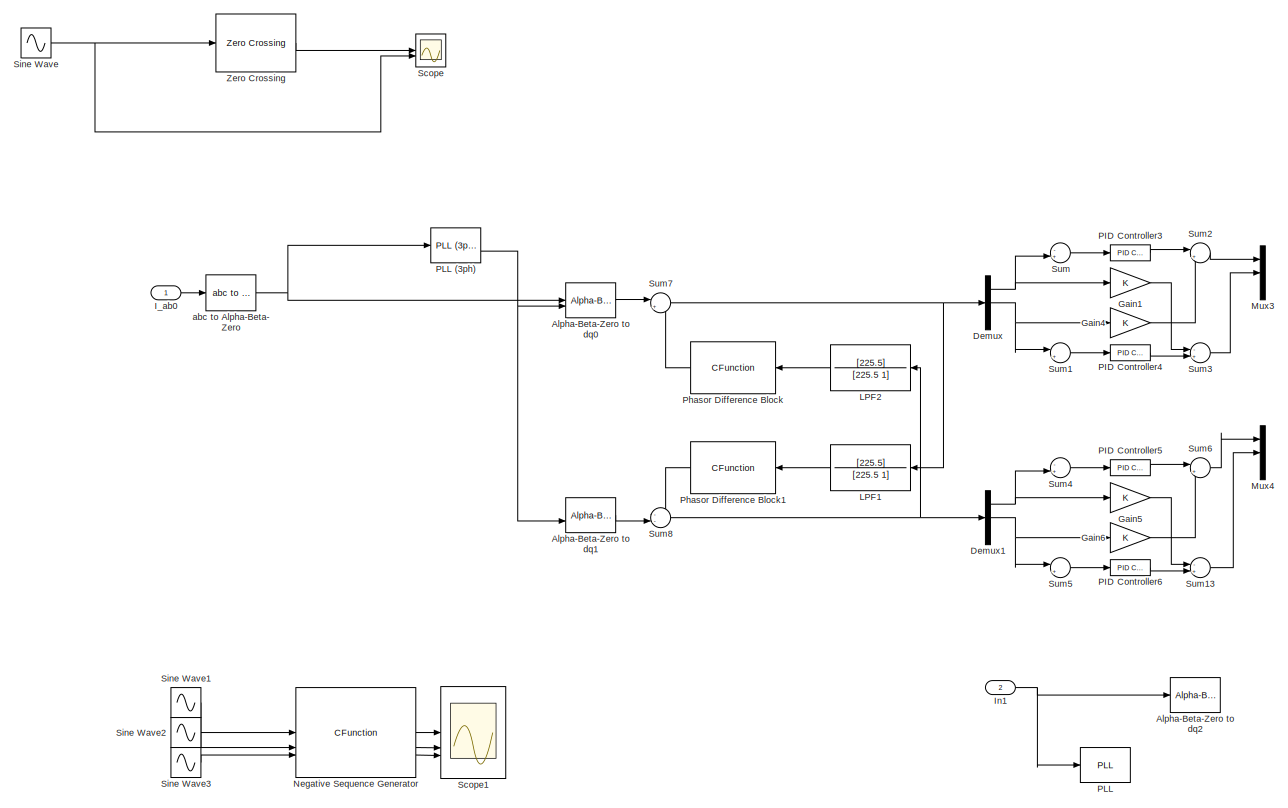
[diagram: root canvas - part 1/2, right side, full height]
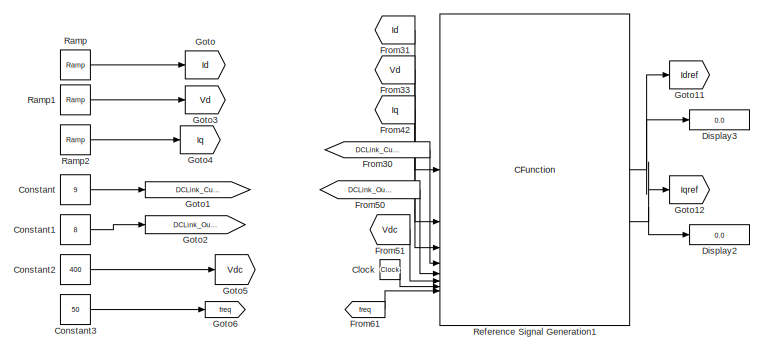
[diagram: root canvas - part 2/2, top left region]
MODEL slx_b0a8a4582526
KIND model
CONFIG AbsTol = auto
CONFIG EnableMultiTasking = off
CONFIG FixedStep = auto
CONFIG MaxStep = auto
CONFIG MinStep = auto
CONFIG RelTol = 1e-3
CONFIG SampleTimeConstraint = Unconstrained
CONFIG SolverName = VariableStepAuto
CONFIG StartTime = 0.0
CONFIG StopTime = 1
BLOCK [Reference] Alpha-Beta-Zero to dq0  REF=spsAlphaBetaZerotodq0Lib/Alpha-Beta-Zero
to dq0
  Commented = on
  LibrarySourceBlock = sps_lib/Control/Alpha-Beta-Zero\nto dq0
  SourceBlock = spsAlphaBetaZerotodq0Lib/Alpha-Beta-Zero\nto dq0
  SourceType = Alpha-Beta-Zero to dq0 Transformation
BLOCK [Reference] Alpha-Beta-Zero to dq1  REF=spsAlphaBetaZerotodq0Lib/Alpha-Beta-Zero
to dq0
  Commented = on
  LibrarySourceBlock = sps_lib/Control/Alpha-Beta-Zero\nto dq0
  SourceBlock = spsAlphaBetaZerotodq0Lib/Alpha-Beta-Zero\nto dq0
  SourceType = Alpha-Beta-Zero to dq0 Transformation
BLOCK [Reference] Alpha-Beta-Zero to dq2  REF=spsAlphaBetaZerotodq0Lib/Alpha-Beta-Zero
to dq0
  LibrarySourceBlock = sps_lib/Control/Alpha-Beta-Zero\nto dq0
  SourceBlock = spsAlphaBetaZerotodq0Lib/Alpha-Beta-Zero\nto dq0
  SourceType = Alpha-Beta-Zero to dq0 Transformation
BLOCK [Clock] Clock
  Commented = on
BLOCK [Constant] Constant
  Commented = on
  SampleTime = 1/10000
  Value = 9
BLOCK [Constant] Constant1
  Commented = on
  SampleTime = 1/10000
  Value = 8
BLOCK [Constant] Constant2
  Commented = on
  SampleTime = 1/10000
  Value = 400
BLOCK [Constant] Constant3
  Commented = on
  SampleTime = 1/10000
  Value = 50
BLOCK [Demux] Demux
  Commented = on
  Outputs = 3
BLOCK [Demux] Demux1
  Commented = on
  Outputs = 3
BLOCK [Display] Display2
  Commented = on
  Decimation = 1
BLOCK [Display] Display3
  Commented = on
  Decimation = 1
BLOCK [From] From30
  Commented = on
  GotoTag = DCLink_Current
  NameLocation = top
BLOCK [From] From31
  Commented = on
  GotoTag = Id
BLOCK [From] From33
  Commented = on
  GotoTag = Vd
BLOCK [From] From42
  Commented = on
  GotoTag = Iq
BLOCK [From] From50
  Commented = on
  GotoTag = DCLink_OutCurrent
  NameLocation = top
BLOCK [From] From51
  Commented = on
  GotoTag = Vdc
BLOCK [From] From61
  Commented = on
  GotoTag = freq
BLOCK [Gain] Gain1
  Commented = on
BLOCK [Gain] Gain4
  Commented = on
BLOCK [Gain] Gain5
  Commented = on
BLOCK [Gain] Gain6
  Commented = on
BLOCK [Goto] Goto
  Commented = on
  GotoTag = Id
BLOCK [Goto] Goto1
  Commented = on
  GotoTag = DCLink_Current
BLOCK [Goto] Goto11
  Commented = on
  GotoTag = Idref
BLOCK [Goto] Goto12
  Commented = on
  GotoTag = Iqref
BLOCK [Goto] Goto2
  Commented = on
  GotoTag = DCLink_OutCurrent
BLOCK [Goto] Goto3
  Commented = on
  GotoTag = Vd
BLOCK [Goto] Goto4
  Commented = on
  GotoTag = Iq
BLOCK [Goto] Goto5
  Commented = on
  GotoTag = Vdc
BLOCK [Goto] Goto6
  Commented = on
  GotoTag = freq
BLOCK [Inport] I_ab0
BLOCK [Inport] In1
  Port = 2
BLOCK [TransferFcn] LPF1
  Commented = on
  Denominator = [225.5 1]
  NameLocation = top
  Numerator = [225.5]
BLOCK [TransferFcn] LPF2
  Commented = on
  Denominator = [225.5 1]
  NameLocation = top
  Numerator = [225.5]
BLOCK [Mux] Mux3
  Commented = on
  DisplayOption = bar
  Inputs = 3
BLOCK [Mux] Mux4
  Commented = on
  DisplayOption = bar
  Inputs = 3
BLOCK [CFunction] Negative Sequence Generator
  OutputCode = VaNeg=*magnitude = cabs(NegativeSequenceVa(Va,Vb,Vc));
BLOCK [Reference] PID Controller3  REF=slpidlib/PID Controller
  Commented = on
  LibrarySourceBlock = simulink/Continuous/PID Controller
  SourceBlock = slpidlib/PID Controller
  SourceType = PID 1dof
BLOCK [Reference] PID Controller4  REF=slpidlib/PID Controller
  Commented = on
  LibrarySourceBlock = simulink/Continuous/PID Controller
  SourceBlock = slpidlib/PID Controller
  SourceType = PID 1dof
BLOCK [Reference] PID Controller5  REF=slpidlib/PID Controller
  Commented = on
  LibrarySourceBlock = simulink/Continuous/PID Controller
  SourceBlock = slpidlib/PID Controller
  SourceType = PID 1dof
BLOCK [Reference] PID Controller6  REF=slpidlib/PID Controller
  Commented = on
  LibrarySourceBlock = simulink/Continuous/PID Controller
  SourceBlock = slpidlib/PID Controller
  SourceType = PID 1dof
BLOCK [Reference] PLL  REF=spsPLLLib/PLL
  LibrarySourceBlock = sps_lib/Control/PLL
  SourceBlock = spsPLLLib/PLL
  SourceType = PLL
BLOCK [Reference] PLL (3ph)  REF=spsPLL3phLib/PLL
(3ph)
  Commented = on
  LibrarySourceBlock = sps_lib/Control/PLL\n(3ph)
  SourceBlock = spsPLL3phLib/PLL\n(3ph)
  SourceType = PLL (3ph)
BLOCK [CFunction] Phasor Difference Block
  Commented = on
  NameLocation = top
BLOCK [CFunction] Phasor Difference Block1
  Commented = on
  NameLocation = top
BLOCK [Reference] Ramp  REF=simulink/Sources/Ramp
  Commented = on
  SourceBlock = simulink/Sources/Ramp
  SourceType = Ramp
BLOCK [Reference] Ramp1  REF=simulink/Sources/Ramp
  Commented = on
  SourceBlock = simulink/Sources/Ramp
  SourceType = Ramp
BLOCK [Reference] Ramp2  REF=simulink/Sources/Ramp
  Commented = on
  SourceBlock = simulink/Sources/Ramp
  SourceType = Ramp
BLOCK [CFunction] Reference Signal Generation1
  Commented = on
  OutputCode = if(Id!=PreviousId || Iq!=PreviousIq){\n    if(ReferenceGenTrigger(Freq_PLL)){\n        Idref=IdrefCalc(CLK,Vd,Iin,Iout, Vdc, Vdc);\n  //Idref =1;\n   Iqref=0;\n   PreviousId=Id;\n   PreviousIq=Iq;\n   }\n  \n} else { Idref = 0; Iqref = 0;}
  SampleTime = 1/10000
  StartCode = PreviousIq =0;\nPreviousId =0;
BLOCK [Scope] Scope
  Commented = on
  Floating = off
  NumInputPorts = 2
  ScopeSpecificationString = Simulink.scopes.TimeScopeBlockCfg('CurrentConfiguration', extmgr.ConfigurationSet(extmgr.Configuration('Core','General UI',true),extmgr.Configuration('Core','Source UI',true),extmgr.Configuration('Sources','WiredSimulink',true),extmgr.Configuration('Visuals','Time Domain',true,'SerializedDisplays',{struct('MinYLimReal','-0.25947','MaxYLimReal','2.17359','YLabelReal','','MinYLimMag','0.00000','MaxY...<+1392ch>
BLOCK [Scope] Scope1
  Floating = off
  NumInputPorts = 3
  ScopeSpecificationString = Simulink.scopes.TimeScopeBlockCfg('CurrentConfiguration', extmgr.ConfigurationSet(extmgr.Configuration('Core','General UI',true),extmgr.Configuration('Core','Source UI',true),extmgr.Configuration('Sources','WiredSimulink',true,'DataLoggingVariableName','ScopeData1'),extmgr.Configuration('Visuals','Time Domain',true,'SerializedDisplays',{struct('MinYLimReal','-10','MaxYLimReal','10','YLabelReal',''...<+1317ch>
BLOCK [Sin] Sine Wave
  Amplitude = 10
  Commented = on
  Frequency = 2*pi*50
  SampleTime = 0
BLOCK [Sin] Sine Wave1
  Amplitude = 340
  Frequency = 2*pi*50
  SampleTime = 0
BLOCK [Sin] Sine Wave2
  Amplitude = 340
  Frequency = 2*pi*50
  Phase = 0.333*(2*pi)
  SampleTime = 0
BLOCK [Sin] Sine Wave3
  Amplitude = 340
  Frequency = 2*pi*50
  Phase = -0.333*(2*pi)
  SampleTime = 0
BLOCK [Sum] Sum
  Commented = on
  Inputs = -+|
BLOCK [Sum] Sum1
  Commented = on
  Inputs = |+-
BLOCK [Sum] Sum13
  Commented = on
  Inputs = -+|
BLOCK [Sum] Sum2
  Commented = on
  Inputs = |++
BLOCK [Sum] Sum3
  Commented = on
  Inputs = -+|
BLOCK [Sum] Sum4
  Commented = on
  Inputs = -+|
BLOCK [Sum] Sum5
  Commented = on
  Inputs = |+-
BLOCK [Sum] Sum6
  Commented = on
  Inputs = |++
BLOCK [Sum] Sum7
  Commented = on
  Inputs = |++
BLOCK [Sum] Sum8
  Commented = on
  Inputs = --|
BLOCK [Reference] Zero Crossing  REF=dspsigops/Zero Crossing
  Commented = on
  SourceBlock = dspsigops/Zero Crossing
  SourceType = Zero Crossing
  UserDataPersistent = on
BLOCK [Reference] abc to Alpha-Beta-Zero  REF=spsabctoAlphaBetaZeroLib/abc to
Alpha-Beta-Zero
  Commented = on
  LibrarySourceBlock = sps_lib/Control/abc to\nAlpha-Beta-Zero
  SourceBlock = spsabctoAlphaBetaZeroLib/abc to\nAlpha-Beta-Zero
  SourceType = abc to Alpha-Beta-Zero Transformation
LINE Alpha-Beta-Zero to dq0:1 -> Sum7:1
LINE Alpha-Beta-Zero to dq1:1 -> Sum8:2
LINE Clock:1 -> Reference Signal Generation1:7
LINE Constant1:1 -> Goto2:1
LINE Constant2:1 -> Goto5:1
LINE Constant3:1 -> Goto6:1
LINE Constant:1 -> Goto1:1
NET Demux1:1 -> Gain5:1, Sum4:2
NET Demux1:2 -> Gain6:1, Sum5:1
NET Demux:1 -> Gain1:1, Sum:2
NET Demux:2 -> Gain4:1, Sum1:1
LINE From30:1 -> Reference Signal Generation1:4
LINE From31:1 -> Reference Signal Generation1:1
LINE From33:1 -> Reference Signal Generation1:2
LINE From42:1 -> Reference Signal Generation1:3
LINE From50:1 -> Reference Signal Generation1:5
LINE From51:1 -> Reference Signal Generation1:6
LINE From61:1 -> Reference Signal Generation1:8
LINE Gain1:1 -> Sum3:1
LINE Gain4:1 -> Sum2:2
LINE Gain5:1 -> Sum13:1
LINE Gain6:1 -> Sum6:2
LINE I_ab0:1 -> abc to Alpha-Beta-Zero:1
NET In1:1 -> Alpha-Beta-Zero to dq2:1, PLL:1
LINE LPF1:1 -> Phasor Difference Block1:1
LINE LPF2:1 -> Phasor Difference Block:1
LINE Negative Sequence Generator:1 -> Scope1:1
LINE Negative Sequence Generator:2 -> Scope1:2
LINE Negative Sequence Generator:3 -> Scope1:3
LINE PID Controller3:1 -> Sum2:1
LINE PID Controller4:1 -> Sum3:2
LINE PID Controller5:1 -> Sum6:1
LINE PID Controller6:1 -> Sum13:2
NET PLL (3ph):2 -> Alpha-Beta-Zero to dq0:2, Alpha-Beta-Zero to dq1:2
LINE Phasor Difference Block1:1 -> Sum8:1
LINE Phasor Difference Block:1 -> Sum7:2
LINE Ramp1:1 -> Goto3:1
LINE Ramp2:1 -> Goto4:1
LINE Ramp:1 -> Goto:1
NET Reference Signal Generation1:1 -> Display3:1, Goto11:1
NET Reference Signal Generation1:2 -> Display2:1, Goto12:1
LINE Sine Wave1:1 -> Negative Sequence Generator:1
LINE Sine Wave2:1 -> Negative Sequence Generator:2
LINE Sine Wave3:1 -> Negative Sequence Generator:3
NET Sine Wave:1 -> Scope:2, Zero Crossing:1
LINE Sum13:1 -> Mux4:2
LINE Sum1:1 -> PID Controller4:1
LINE Sum2:1 -> Mux3:1
LINE Sum3:1 -> Mux3:2
LINE Sum4:1 -> PID Controller5:1
LINE Sum5:1 -> PID Controller6:1
LINE Sum6:1 -> Mux4:1
NET Sum7:1 -> Demux:1, LPF1:1
NET Sum8:1 -> Demux1:1, LPF2:1
LINE Sum:1 -> PID Controller3:1
LINE Zero Crossing:1 -> Scope:1
NET abc to Alpha-Beta-Zero:1 -> Alpha-Beta-Zero to dq0:1, PLL (3ph):1
note: NET lines group one-source signal fan-out (src -> all destinations, sorted); 1:1 wires keep LINE
